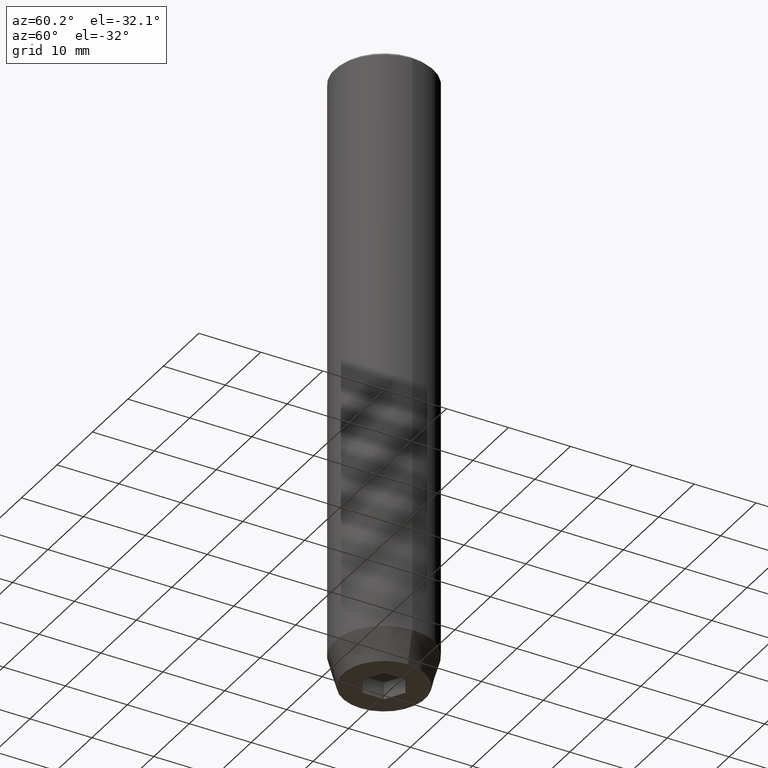
[diagram: clean part render]
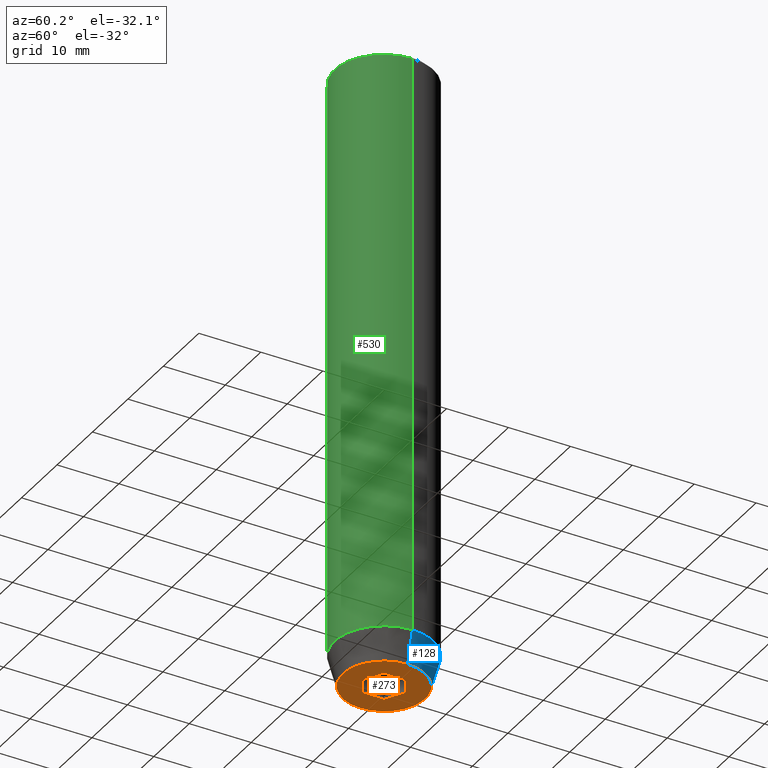
[diagram: same view with three faces highlighted in distinct colors, each labeled with its STEP entity id]
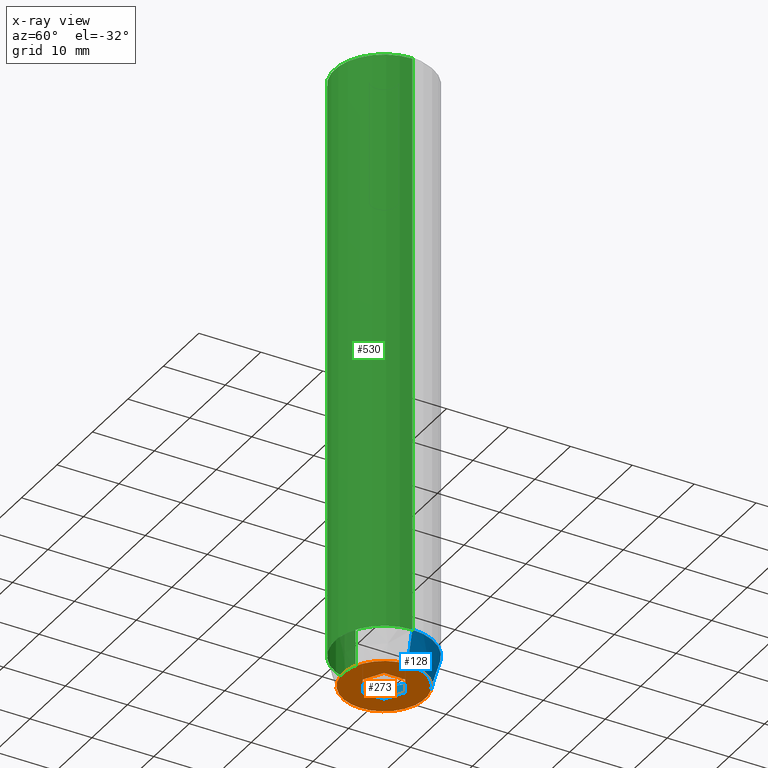
[diagram: x-ray of the same camera — body ghosted, the three highlighted faces saturated]
A machine part, auxiliary view with three faces highlighted in distinct colors.
The next image is the same camera in x-ray (body ghosted, the three faces saturated) — at least one of them is partly hidden behind the body in this view.
Their STEP definitions:

[orange] entity #273 — the highlighted planar face has unit normal (0, 0, -1).
#8 = EDGE_CURVE ( 'NONE', #412, #19, #172, .T. ) ;
#16 = VERTEX_POINT ( 'NONE', #44 ) ;
#19 = VERTEX_POINT ( 'NONE', #135 ) ;
#25 = EDGE_CURVE ( 'NONE', #117, #152, #362, .T. ) ;
#31 = CARTESIAN_POINT ( 'NONE',  ( -3.000000000000000444, -7.511572993685800087E-16, -100.0000000000000000 ) ) ;
#44 = CARTESIAN_POINT ( 'NONE',  ( 3.000000000000000000, 1.732050807568876527, -100.0000000000000000 ) ) ;
#50 = LINE ( 'NONE', #58, #484 ) ;
#56 = AXIS2_PLACEMENT_3D ( 'NONE', #447, #223, #505 ) ;
#58 = CARTESIAN_POINT ( 'NONE',  ( 1.500000000000000222, 2.598076211353315568, -100.0000000000000000 ) ) ;
#61 = ORIENTED_EDGE ( 'NONE', *, *, #191, .F. ) ;
#81 = EDGE_CURVE ( 'NONE', #482, #516, #275, .T. ) ;
#90 = EDGE_CURVE ( 'NONE', #516, #482, #388, .T. ) ;
#117 = VERTEX_POINT ( 'NONE', #322 ) ;
#135 = CARTESIAN_POINT ( 'NONE',  ( -2.168404344971008868E-16, -3.464101615137754830, -100.0000000000000000 ) ) ;
#140 = DIRECTION ( 'NONE',  ( 1.000000000000000000, 0.000000000000000000, 0.000000000000000000 ) ) ;
#142 = AXIS2_PLACEMENT_3D ( 'NONE', #438, #344, #528 ) ;
#146 = CARTESIAN_POINT ( 'NONE',  ( 6.660254037844381969, 0.000000000000000000, -100.0000000000000000 ) ) ;
#152 = VERTEX_POINT ( 'NONE', #298 ) ;
#163 = PLANE ( 'NONE',  #142 ) ;
#172 = LINE ( 'NONE', #455, #534 ) ;
#178 = ORIENTED_EDGE ( 'NONE', *, *, #90, .F. ) ;
#182 = DIRECTION ( 'NONE',  ( 0.8660254037844387076, 0.4999999999999999445, 0.000000000000000000 ) ) ;
#191 = EDGE_CURVE ( 'NONE', #16, #412, #430, .T. ) ;
#200 = ORIENTED_EDGE ( 'NONE', *, *, #25, .F. ) ;
#219 = CARTESIAN_POINT ( 'NONE',  ( -1.499999999999999556, 2.598076211353316012, -100.0000000000000000 ) ) ;
#223 = DIRECTION ( 'NONE',  ( -0.000000000000000000, -0.000000000000000000, 1.000000000000000000 ) ) ;
#224 = DIRECTION ( 'NONE',  ( 0.8660254037844385966, -0.5000000000000001110, 0.000000000000000000 ) ) ;
#227 = AXIS2_PLACEMENT_3D ( 'NONE', #502, #546, #140 ) ;
#235 = CARTESIAN_POINT ( 'NONE',  ( -6.660254037844381969, 8.976816591066591237E-16, -100.0000000000000000 ) ) ;
#243 = ORIENTED_EDGE ( 'NONE', *, *, #267, .F. ) ;
#267 = EDGE_CURVE ( 'NONE', #292, #117, #294, .T. ) ;
#273 = ADVANCED_FACE ( 'NONE', ( #526, #577 ), #163, .T. ) ;
#275 = CIRCLE ( 'NONE', #56, 6.660254037844381969 ) ;
#292 = VERTEX_POINT ( 'NONE', #497 ) ;
#294 = LINE ( 'NONE', #31, #398 ) ;
#298 = CARTESIAN_POINT ( 'NONE',  ( -2.168404344971008868E-16, 3.464101615137754830, -100.0000000000000000 ) ) ;
#322 = CARTESIAN_POINT ( 'NONE',  ( -3.000000000000000888, 1.732050807568876527, -100.0000000000000000 ) ) ;
#323 = CARTESIAN_POINT ( 'NONE',  ( 3.000000000000000000, -1.732050807568876527, -100.0000000000000000 ) ) ;
#331 = DIRECTION ( 'NONE',  ( 0.000000000000000000, -1.000000000000000000, 0.000000000000000000 ) ) ;
#341 = CARTESIAN_POINT ( 'NONE',  ( 3.000000000000000000, 0.000000000000000000, -100.0000000000000000 ) ) ;
#344 = DIRECTION ( 'NONE',  ( 0.000000000000000000, 0.000000000000000000, -1.000000000000000000 ) ) ;
#362 = LINE ( 'NONE', #219, #461 ) ;
#370 = ORIENTED_EDGE ( 'NONE', *, *, #547, .F. ) ;
#374 = EDGE_CURVE ( 'NONE', #152, #16, #50, .T. ) ;
#375 = VECTOR ( 'NONE', #331, 1000.000000000000000 ) ;
#388 = CIRCLE ( 'NONE', #227, 6.660254037844381969 ) ;
#395 = ORIENTED_EDGE ( 'NONE', *, *, #374, .F. ) ;
#398 = VECTOR ( 'NONE', #572, 1000.000000000000000 ) ;
#408 = DIRECTION ( 'NONE',  ( -0.8660254037844385966, -0.5000000000000001110, 0.000000000000000000 ) ) ;
#410 = LINE ( 'NONE', #413, #436 ) ;
#412 = VERTEX_POINT ( 'NONE', #323 ) ;
#413 = CARTESIAN_POINT ( 'NONE',  ( -1.500000000000000666, -2.598076211353316456, -100.0000000000000000 ) ) ;
#430 = LINE ( 'NONE', #341, #375 ) ;
#436 = VECTOR ( 'NONE', #551, 1000.000000000000000 ) ;
#438 = CARTESIAN_POINT ( 'NONE',  ( 0.000000000000000000, 6.660254037844381969, -100.0000000000000000 ) ) ;
#442 = ORIENTED_EDGE ( 'NONE', *, *, #81, .F. ) ;
#447 = CARTESIAN_POINT ( 'NONE',  ( 0.000000000000000000, 0.000000000000000000, -100.0000000000000000 ) ) ;
#449 = ORIENTED_EDGE ( 'NONE', *, *, #8, .F. ) ;
#455 = CARTESIAN_POINT ( 'NONE',  ( 1.500000000000000222, -2.598076211353315568, -100.0000000000000000 ) ) ;
#461 = VECTOR ( 'NONE', #182, 999.9999999999998863 ) ;
#482 = VERTEX_POINT ( 'NONE', #146 ) ;
#484 = VECTOR ( 'NONE', #224, 1000.000000000000000 ) ;
#497 = CARTESIAN_POINT ( 'NONE',  ( -3.000000000000000000, -1.732050807568877859, -100.0000000000000000 ) ) ;
#502 = CARTESIAN_POINT ( 'NONE',  ( 0.000000000000000000, 0.000000000000000000, -100.0000000000000000 ) ) ;
#505 = DIRECTION ( 'NONE',  ( 1.000000000000000000, 0.000000000000000000, 0.000000000000000000 ) ) ;
#516 = VERTEX_POINT ( 'NONE', #235 ) ;
#526 = FACE_BOUND ( 'NONE', #558, .T. ) ;
#528 = DIRECTION ( 'NONE',  ( -1.000000000000000000, 0.000000000000000000, -0.000000000000000000 ) ) ;
#534 = VECTOR ( 'NONE', #408, 1000.000000000000000 ) ;
#546 = DIRECTION ( 'NONE',  ( -0.000000000000000000, -0.000000000000000000, 1.000000000000000000 ) ) ;
#547 = EDGE_CURVE ( 'NONE', #19, #292, #410, .T. ) ;
#551 = DIRECTION ( 'NONE',  ( -0.8660254037844385966, 0.5000000000000001110, 0.000000000000000000 ) ) ;
#555 = EDGE_LOOP ( 'NONE', ( #442, #178 ) ) ;
#558 = EDGE_LOOP ( 'NONE', ( #200, #243, #370, #449, #61, #395 ) ) ;
#572 = DIRECTION ( 'NONE',  ( -2.503857664561932376E-16, 1.000000000000000000, 0.000000000000000000 ) ) ;
#577 = FACE_OUTER_BOUND ( 'NONE', #555, .T. ) ;

[blue] entity #128 — the highlighted conical surface has half-angle 15 deg.
#28 = LINE ( 'NONE', #256, #494 ) ;
#32 = ORIENTED_EDGE ( 'NONE', *, *, #296, .T. ) ;
#46 = AXIS2_PLACEMENT_3D ( 'NONE', #251, #203, #532 ) ;
#56 = AXIS2_PLACEMENT_3D ( 'NONE', #447, #223, #505 ) ;
#81 = EDGE_CURVE ( 'NONE', #482, #516, #275, .T. ) ;
#83 = CARTESIAN_POINT ( 'NONE',  ( 0.000000000000000000, 0.000000000000000000, -95.00000000000000000 ) ) ;
#92 = CARTESIAN_POINT ( 'NONE',  ( 8.000000000000000000, 0.000000000000000000, -95.00000000000000000 ) ) ;
#118 = ORIENTED_EDGE ( 'NONE', *, *, #81, .T. ) ;
#128 = ADVANCED_FACE ( 'NONE', ( #287 ), #434, .T. ) ;
#143 = EDGE_CURVE ( 'NONE', #387, #181, #483, .T. ) ;
#146 = CARTESIAN_POINT ( 'NONE',  ( 6.660254037844381969, 0.000000000000000000, -100.0000000000000000 ) ) ;
#181 = VERTEX_POINT ( 'NONE', #426 ) ;
#203 = DIRECTION ( 'NONE',  ( -0.000000000000000000, -0.000000000000000000, 1.000000000000000000 ) ) ;
#212 = EDGE_CURVE ( 'NONE', #482, #387, #28, .T. ) ;
#215 = DIRECTION ( 'NONE',  ( -0.000000000000000000, -0.000000000000000000, 1.000000000000000000 ) ) ;
#223 = DIRECTION ( 'NONE',  ( -0.000000000000000000, -0.000000000000000000, 1.000000000000000000 ) ) ;
#235 = CARTESIAN_POINT ( 'NONE',  ( -6.660254037844381969, 8.976816591066591237E-16, -100.0000000000000000 ) ) ;
#251 = CARTESIAN_POINT ( 'NONE',  ( 0.000000000000000000, 0.000000000000000000, -95.00000000000000000 ) ) ;
#256 = CARTESIAN_POINT ( 'NONE',  ( 8.000000000000000000, 0.000000000000000000, -95.00000000000000000 ) ) ;
#275 = CIRCLE ( 'NONE', #56, 6.660254037844381969 ) ;
#287 = FACE_OUTER_BOUND ( 'NONE', #372, .T. ) ;
#296 = EDGE_CURVE ( 'NONE', #516, #181, #446, .T. ) ;
#349 = DIRECTION ( 'NONE',  ( -0.2588190451025213501, 3.169619151431772337E-17, 0.9659258262890680902 ) ) ;
#372 = EDGE_LOOP ( 'NONE', ( #118, #32, #424, #431 ) ) ;
#387 = VERTEX_POINT ( 'NONE', #92 ) ;
#424 = ORIENTED_EDGE ( 'NONE', *, *, #143, .F. ) ;
#426 = CARTESIAN_POINT ( 'NONE',  ( -8.000000000000000000, 9.797174393178825657E-16, -95.00000000000000000 ) ) ;
#431 = ORIENTED_EDGE ( 'NONE', *, *, #212, .F. ) ;
#434 = CONICAL_SURFACE ( 'NONE', #584, 8.000000000000000000, 0.2617993877991500740 ) ;
#435 = VECTOR ( 'NONE', #349, 1000.000000000000000 ) ;
#446 = LINE ( 'NONE', #500, #435 ) ;
#447 = CARTESIAN_POINT ( 'NONE',  ( 0.000000000000000000, 0.000000000000000000, -100.0000000000000000 ) ) ;
#482 = VERTEX_POINT ( 'NONE', #146 ) ;
#483 = CIRCLE ( 'NONE', #46, 8.000000000000000000 ) ;
#487 = DIRECTION ( 'NONE',  ( 1.000000000000000000, 0.000000000000000000, 0.000000000000000000 ) ) ;
#494 = VECTOR ( 'NONE', #522, 1000.000000000000000 ) ;
#500 = CARTESIAN_POINT ( 'NONE',  ( -8.000000000000000000, 9.797174393178825657E-16, -95.00000000000000000 ) ) ;
#505 = DIRECTION ( 'NONE',  ( 1.000000000000000000, 0.000000000000000000, 0.000000000000000000 ) ) ;
#516 = VERTEX_POINT ( 'NONE', #235 ) ;
#522 = DIRECTION ( 'NONE',  ( 0.2588190451025213501, 0.000000000000000000, 0.9659258262890680902 ) ) ;
#532 = DIRECTION ( 'NONE',  ( 1.000000000000000000, 0.000000000000000000, 0.000000000000000000 ) ) ;
#584 = AXIS2_PLACEMENT_3D ( 'NONE', #83, #215, #487 ) ;

[green] entity #530 — the highlighted cylindrical surface (partial cylindrical patch) has radius 8 mm, axis along (-0, -0, 1).
#5 = EDGE_LOOP ( 'NONE', ( #416, #580, #477, #236 ) ) ;
#35 = CARTESIAN_POINT ( 'NONE',  ( -8.000000000000000000, 9.797174393178825657E-16, -0.5000000000000213163 ) ) ;
#57 = AXIS2_PLACEMENT_3D ( 'NONE', #60, #232, #371 ) ;
#60 = CARTESIAN_POINT ( 'NONE',  ( 0.000000000000000000, 0.000000000000000000, 0.000000000000000000 ) ) ;
#66 = CARTESIAN_POINT ( 'NONE',  ( 8.000000000000000000, 0.000000000000000000, 0.000000000000000000 ) ) ;
#76 = DIRECTION ( 'NONE',  ( 1.000000000000000000, 0.000000000000000000, 0.000000000000000000 ) ) ;
#92 = CARTESIAN_POINT ( 'NONE',  ( 8.000000000000000000, 0.000000000000000000, -95.00000000000000000 ) ) ;
#111 = DIRECTION ( 'NONE',  ( 1.000000000000000000, 0.000000000000000000, 0.000000000000000000 ) ) ;
#156 = VERTEX_POINT ( 'NONE', #35 ) ;
#160 = VECTOR ( 'NONE', #556, 1000.000000000000000 ) ;
#171 = CARTESIAN_POINT ( 'NONE',  ( -8.000000000000000000, 9.797174393178825657E-16, 0.000000000000000000 ) ) ;
#181 = VERTEX_POINT ( 'NONE', #426 ) ;
#184 = EDGE_CURVE ( 'NONE', #181, #387, #407, .T. ) ;
#192 = CARTESIAN_POINT ( 'NONE',  ( 8.000000000000000000, 0.000000000000000000, -0.5000000000000213163 ) ) ;
#198 = CIRCLE ( 'NONE', #571, 8.000000000000000000 ) ;
#230 = EDGE_CURVE ( 'NONE', #490, #156, #198, .T. ) ;
#232 = DIRECTION ( 'NONE',  ( -0.000000000000000000, -0.000000000000000000, 1.000000000000000000 ) ) ;
#236 = ORIENTED_EDGE ( 'NONE', *, *, #230, .T. ) ;
#270 = LINE ( 'NONE', #171, #415 ) ;
#311 = EDGE_CURVE ( 'NONE', #181, #156, #270, .T. ) ;
#316 = AXIS2_PLACEMENT_3D ( 'NONE', #480, #334, #111 ) ;
#334 = DIRECTION ( 'NONE',  ( -0.000000000000000000, -0.000000000000000000, 1.000000000000000000 ) ) ;
#347 = CARTESIAN_POINT ( 'NONE',  ( 0.000000000000000000, 0.000000000000000000, -0.5000000000000213163 ) ) ;
#371 = DIRECTION ( 'NONE',  ( 1.000000000000000000, 0.000000000000000000, 0.000000000000000000 ) ) ;
#387 = VERTEX_POINT ( 'NONE', #92 ) ;
#407 = CIRCLE ( 'NONE', #316, 8.000000000000000000 ) ;
#409 = CYLINDRICAL_SURFACE ( 'NONE', #57, 8.000000000000000000 ) ;
#415 = VECTOR ( 'NONE', #545, 1000.000000000000000 ) ;
#416 = ORIENTED_EDGE ( 'NONE', *, *, #311, .F. ) ;
#421 = LINE ( 'NONE', #66, #160 ) ;
#426 = CARTESIAN_POINT ( 'NONE',  ( -8.000000000000000000, 9.797174393178825657E-16, -95.00000000000000000 ) ) ;
#477 = ORIENTED_EDGE ( 'NONE', *, *, #507, .T. ) ;
#480 = CARTESIAN_POINT ( 'NONE',  ( 0.000000000000000000, 0.000000000000000000, -95.00000000000000000 ) ) ;
#490 = VERTEX_POINT ( 'NONE', #192 ) ;
#507 = EDGE_CURVE ( 'NONE', #387, #490, #421, .T. ) ;
#509 = FACE_OUTER_BOUND ( 'NONE', #5, .T. ) ;
#518 = DIRECTION ( 'NONE',  ( 0.000000000000000000, 0.000000000000000000, -1.000000000000000000 ) ) ;
#530 = ADVANCED_FACE ( 'NONE', ( #509 ), #409, .T. ) ;
#545 = DIRECTION ( 'NONE',  ( -0.000000000000000000, -0.000000000000000000, 1.000000000000000000 ) ) ;
#556 = DIRECTION ( 'NONE',  ( -0.000000000000000000, -0.000000000000000000, 1.000000000000000000 ) ) ;
#571 = AXIS2_PLACEMENT_3D ( 'NONE', #347, #518, #76 ) ;
#580 = ORIENTED_EDGE ( 'NONE', *, *, #184, .T. ) ;